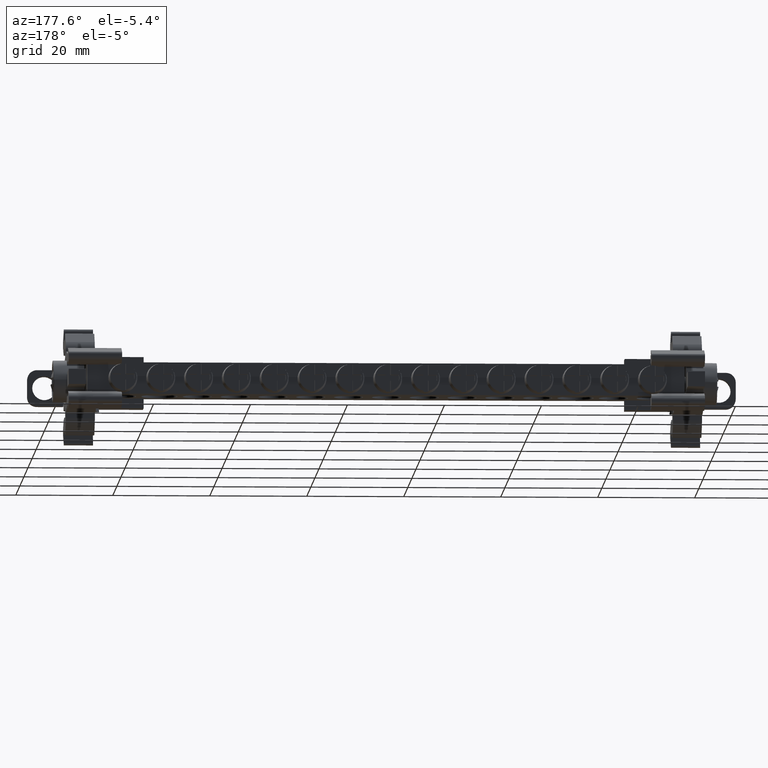
[diagram: clean part render]
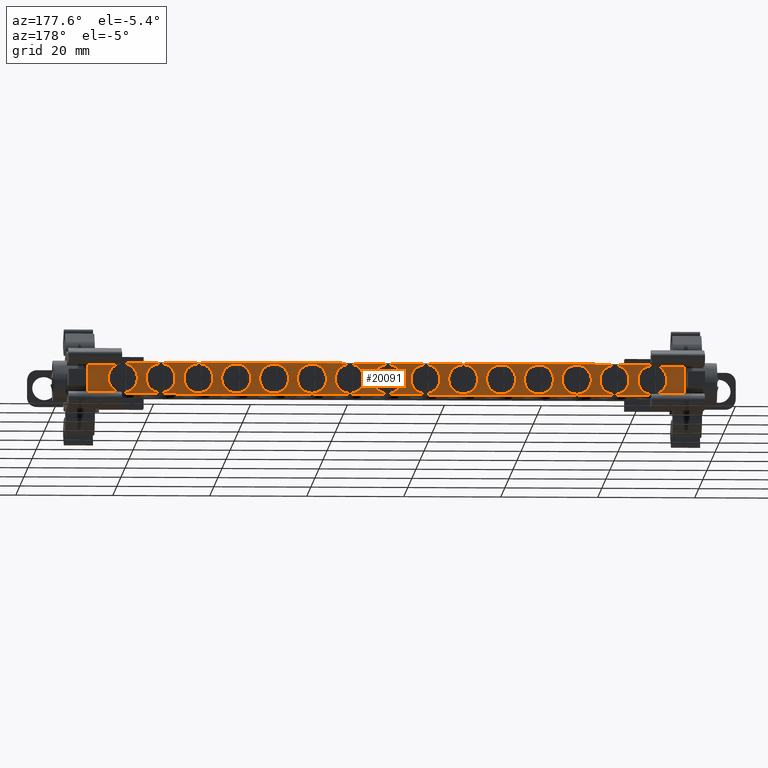
[diagram: same view with one face highlighted and labeled with its STEP entity id]
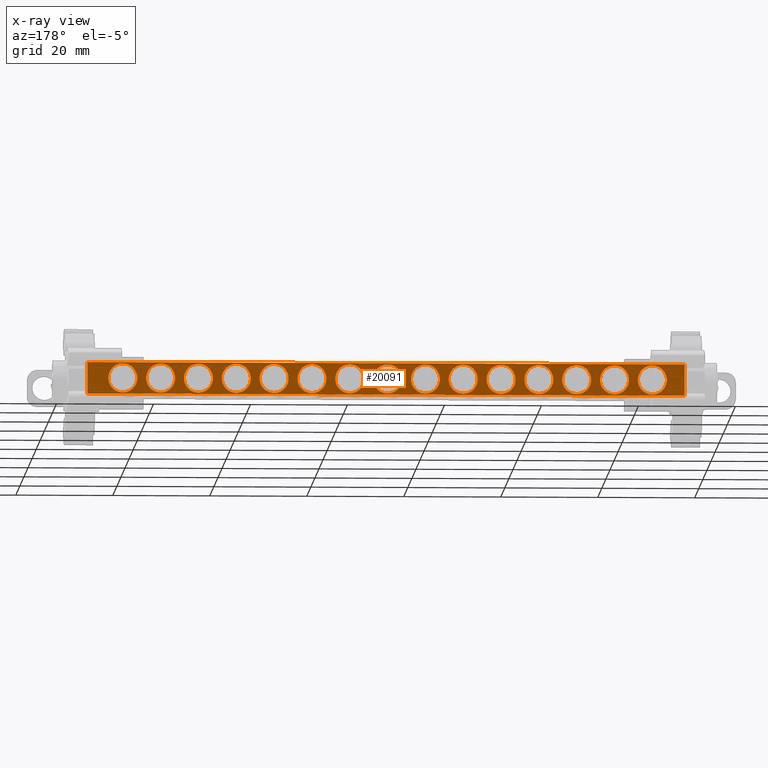
[diagram: x-ray of the same camera — body ghosted, the highlighted face saturated]
A machine part, auxiliary view. The second image highlights one B-rep face of the part: STEP entity #20091.
The next image is the same camera in x-ray: the body ghosted, the highlighted face saturated — about 0% of this face is hidden behind the body in this view.
In plain terms, the highlighted planar face has unit normal (0, -1, 0).
Its self-contained STEP definition (entity closure, byte-faithful):
#532 = CARTESIAN_POINT ( 'NONE',  ( -84.40539649368646700, -33.46391012922822500, 96.00723811290720300 ) ) ;
#534 = DIRECTION ( 'NONE',  ( -0.0000000000000000000, 1.000000000000000000, -0.0000000000000000000 ) ) ;
#535 = DIRECTION ( 'NONE',  ( 0.0000000000000000000, 0.0000000000000000000, -1.000000000000000000 ) ) ;
#547 = DIRECTION ( 'NONE',  ( 0.0000000000000000000, 0.0000000000000000000, -1.000000000000000000 ) ) ;
#551 = CARTESIAN_POINT ( 'NONE',  ( -139.0053964936864200, -33.46391012922822500, 96.00723811290720300 ) ) ;
#560 = DIRECTION ( 'NONE',  ( -0.0000000000000000000, 1.000000000000000000, -0.0000000000000000000 ) ) ;
#572 = DIRECTION ( 'NONE',  ( 0.0000000000000000000, 0.0000000000000000000, -1.000000000000000000 ) ) ;
#575 = CARTESIAN_POINT ( 'NONE',  ( -37.60539649368644200, -33.46391012922822500, 96.00723811290720300 ) ) ;
#592 = DIRECTION ( 'NONE',  ( -0.0000000000000000000, 1.000000000000000000, -0.0000000000000000000 ) ) ;
#620 = CARTESIAN_POINT ( 'NONE',  ( -68.80539649368644500, -33.46391012922822500, 96.00723811290720300 ) ) ;
#640 = DIRECTION ( 'NONE',  ( -0.0000000000000000000, 1.000000000000000000, -0.0000000000000000000 ) ) ;
#642 = DIRECTION ( 'NONE',  ( 0.0000000000000000000, 0.0000000000000000000, -1.000000000000000000 ) ) ;
#649 = DIRECTION ( 'NONE',  ( 0.0000000000000000000, 0.0000000000000000000, -1.000000000000000000 ) ) ;
#655 = CARTESIAN_POINT ( 'NONE',  ( -100.0053964936864500, -33.46391012922822500, 96.00723811290720300 ) ) ;
#660 = CARTESIAN_POINT ( 'NONE',  ( -146.8053964936864300, -33.46391012922822500, 96.00723811290720300 ) ) ;
#676 = DIRECTION ( 'NONE',  ( -0.0000000000000000000, 1.000000000000000000, -0.0000000000000000000 ) ) ;
#688 = DIRECTION ( 'NONE',  ( -0.0000000000000000000, 1.000000000000000000, -0.0000000000000000000 ) ) ;
#693 = CARTESIAN_POINT ( 'NONE',  ( -92.20539649368645000, -33.46391012922822500, 96.00723811290720300 ) ) ;
#697 = DIRECTION ( 'NONE',  ( -0.0000000000000000000, 1.000000000000000000, -0.0000000000000000000 ) ) ;
#706 = DIRECTION ( 'NONE',  ( 0.0000000000000000000, 0.0000000000000000000, -1.000000000000000000 ) ) ;
#710 = DIRECTION ( 'NONE',  ( 0.0000000000000000000, 0.0000000000000000000, -1.000000000000000000 ) ) ;
#732 = AXIS2_PLACEMENT_3D ( 'NONE', #13365, #13352, #13359 ) ;
#739 = CIRCLE ( 'NONE', #750, 3.000085598029278400 ) ;
#750 = AXIS2_PLACEMENT_3D ( 'NONE', #13312, #13311, #13334 ) ;
#760 = CIRCLE ( 'NONE', #732, 3.000085598029278400 ) ;
#884 = AXIS2_PLACEMENT_3D ( 'NONE', #10742, #10758, #10753 ) ;
#901 = CIRCLE ( 'NONE', #884, 3.000085598029278400 ) ;
#918 = CIRCLE ( 'NONE', #943, 3.000085598029278400 ) ;
#922 = AXIS2_PLACEMENT_3D ( 'NONE', #10775, #10770, #10771 ) ;
#934 = CIRCLE ( 'NONE', #922, 3.000085598029278400 ) ;
#943 = AXIS2_PLACEMENT_3D ( 'NONE', #10804, #10814, #10807 ) ;
#1995 = DIRECTION ( 'NONE',  ( -0.0000000000000000000, 1.000000000000000000, -0.0000000000000000000 ) ) ;
#2080 = DIRECTION ( 'NONE',  ( 0.0000000000000000000, 0.0000000000000000000, -1.000000000000000000 ) ) ;
#2747 = DIRECTION ( 'NONE',  ( -0.0000000000000000000, 1.000000000000000000, -0.0000000000000000000 ) ) ;
#2757 = DIRECTION ( 'NONE',  ( 0.0000000000000000000, 0.0000000000000000000, -1.000000000000000000 ) ) ;
#2769 = CARTESIAN_POINT ( 'NONE',  ( -139.0053964936864200, -33.46391012922822500, 96.00723811290720300 ) ) ;
#2918 = CARTESIAN_POINT ( 'NONE',  ( -131.2053964936864400, -33.46391012922822500, 96.00723811290720300 ) ) ;
#3064 = CARTESIAN_POINT ( 'NONE',  ( -61.00539649368644000, -33.46391012922822500, 96.00723811290720300 ) ) ;
#3083 = CARTESIAN_POINT ( 'NONE',  ( -123.4053964936864500, -33.46391012922822500, 96.00723811290720300 ) ) ;
#3087 = DIRECTION ( 'NONE',  ( 0.0000000000000000000, 0.0000000000000000000, -1.000000000000000000 ) ) ;
#3088 = DIRECTION ( 'NONE',  ( -0.0000000000000000000, 1.000000000000000000, -0.0000000000000000000 ) ) ;
#3089 = DIRECTION ( 'NONE',  ( 0.0000000000000000000, 0.0000000000000000000, -1.000000000000000000 ) ) ;
#3090 = DIRECTION ( 'NONE',  ( -0.0000000000000000000, 1.000000000000000000, -0.0000000000000000000 ) ) ;
#3102 = DIRECTION ( 'NONE',  ( 1.000000000000000000, 0.0000000000000000000, 0.0000000000000000000 ) ) ;
#3111 = CARTESIAN_POINT ( 'NONE',  ( -131.2053964936864400, -33.46391012922822500, 96.00723811290720300 ) ) ;
#3115 = DIRECTION ( 'NONE',  ( 0.0000000000000000000, 0.0000000000000000000, -1.000000000000000000 ) ) ;
#3118 = CARTESIAN_POINT ( 'NONE',  ( -90.70539649368640800, -33.46391012921964900, 99.25723811290720300 ) ) ;
#3122 = CARTESIAN_POINT ( 'NONE',  ( -76.60539649368644200, -33.46391012922822500, 96.00723811290720300 ) ) ;
#3124 = DIRECTION ( 'NONE',  ( -0.0000000000000000000, 1.000000000000000000, -0.0000000000000000000 ) ) ;
#3131 = CARTESIAN_POINT ( 'NONE',  ( -90.70539649368640800, -33.46391012921964900, 92.75723811290720300 ) ) ;
#3132 = DIRECTION ( 'NONE',  ( 1.000000000000000000, -0.0000000000000000000, 0.0000000000000000000 ) ) ;
#3136 = LINE ( 'NONE', #3118, #25153 ) ;
#3138 = DIRECTION ( 'NONE',  ( 0.0000000000000000000, 0.0000000000000000000, -1.000000000000000000 ) ) ;
#3143 = LINE ( 'NONE', #3131, #25157 ) ;
#3145 = DIRECTION ( 'NONE',  ( -0.0000000000000000000, 1.000000000000000000, -0.0000000000000000000 ) ) ;
#3151 = CARTESIAN_POINT ( 'NONE',  ( -30.30539649368639800, -33.46391012921964900, 99.25723811290720300 ) ) ;
#3174 = LINE ( 'NONE', #3151, #25149 ) ;
#3182 = DIRECTION ( 'NONE',  ( -0.0000000000000000000, -0.0000000000000000000, -1.000000000000000000 ) ) ;
#3194 = DIRECTION ( 'NONE',  ( -0.0000000000000000000, 1.000000000000000000, -0.0000000000000000000 ) ) ;
#3196 = CARTESIAN_POINT ( 'NONE',  ( -107.8053964936864400, -33.46391012922822500, 96.00723811290720300 ) ) ;
#3201 = DIRECTION ( 'NONE',  ( 0.0000000000000000000, 0.0000000000000000000, -1.000000000000000000 ) ) ;
#3203 = DIRECTION ( 'NONE',  ( -0.0000000000000000000, 1.000000000000000000, -0.0000000000000000000 ) ) ;
#3205 = CARTESIAN_POINT ( 'NONE',  ( -45.40539649368644600, -33.46391012922822500, 96.00723811290720300 ) ) ;
#3212 = LINE ( 'NONE', #3259, #25222 ) ;
#3239 = DIRECTION ( 'NONE',  ( 0.0000000000000000000, 0.0000000000000000000, -1.000000000000000000 ) ) ;
#3259 = CARTESIAN_POINT ( 'NONE',  ( -153.4553964936864100, -33.46391012921964900, 99.25723811290720300 ) ) ;
#3261 = DIRECTION ( 'NONE',  ( -0.0000000000000000000, 1.000000000000000000, -0.0000000000000000000 ) ) ;
#3272 = DIRECTION ( 'NONE',  ( 0.0000000000000000000, 0.0000000000000000000, -1.000000000000000000 ) ) ;
#3274 = DIRECTION ( 'NONE',  ( -0.0000000000000000000, 1.000000000000000000, -0.0000000000000000000 ) ) ;
#3279 = DIRECTION ( 'NONE',  ( 0.0000000000000000000, 0.0000000000000000000, -1.000000000000000000 ) ) ;
#3298 = CARTESIAN_POINT ( 'NONE',  ( -53.20539649368644300, -33.46391012922822500, 96.00723811290720300 ) ) ;
#3303 = CARTESIAN_POINT ( 'NONE',  ( -115.6053964936864600, -33.46391012922822500, 96.00723811290720300 ) ) ;
#3304 = DIRECTION ( 'NONE',  ( 0.0000000000000000000, -0.0000000000000000000, -1.000000000000000000 ) ) ;
#5764 = CARTESIAN_POINT ( 'NONE',  ( -123.4053964936864500, -33.46391012922822500, 96.00723811290720300 ) ) ;
#5765 = DIRECTION ( 'NONE',  ( -0.0000000000000000000, 1.000000000000000000, -0.0000000000000000000 ) ) ;
#5766 = DIRECTION ( 'NONE',  ( 0.0000000000000000000, 0.0000000000000000000, -1.000000000000000000 ) ) ;
#5804 = DIRECTION ( 'NONE',  ( 0.0000000000000000000, 0.0000000000000000000, -1.000000000000000000 ) ) ;
#5827 = DIRECTION ( 'NONE',  ( -0.0000000000000000000, 1.000000000000000000, -0.0000000000000000000 ) ) ;
#5831 = CARTESIAN_POINT ( 'NONE',  ( -146.8053964936864300, -33.46391012922822500, 96.00723811290720300 ) ) ;
#5847 = DIRECTION ( 'NONE',  ( 0.0000000000000000000, 0.0000000000000000000, -1.000000000000000000 ) ) ;
#5851 = DIRECTION ( 'NONE',  ( -0.0000000000000000000, 1.000000000000000000, -0.0000000000000000000 ) ) ;
#5864 = CARTESIAN_POINT ( 'NONE',  ( -68.80539649368644500, -33.46391012922822500, 96.00723811290720300 ) ) ;
#5867 = CARTESIAN_POINT ( 'NONE',  ( -84.40539649368646700, -33.46391012922822500, 96.00723811290720300 ) ) ;
#5868 = DIRECTION ( 'NONE',  ( -0.0000000000000000000, 1.000000000000000000, -0.0000000000000000000 ) ) ;
#5869 = DIRECTION ( 'NONE',  ( 0.0000000000000000000, 0.0000000000000000000, -1.000000000000000000 ) ) ;
#5873 = CARTESIAN_POINT ( 'NONE',  ( -115.6053964936864600, -33.46391012922822500, 96.00723811290720300 ) ) ;
#5875 = DIRECTION ( 'NONE',  ( 0.0000000000000000000, 0.0000000000000000000, -1.000000000000000000 ) ) ;
#5880 = DIRECTION ( 'NONE',  ( -0.0000000000000000000, 1.000000000000000000, -0.0000000000000000000 ) ) ;
#5883 = CARTESIAN_POINT ( 'NONE',  ( -92.20539649368645000, -33.46391012922822500, 96.00723811290720300 ) ) ;
#5884 = DIRECTION ( 'NONE',  ( -0.0000000000000000000, 1.000000000000000000, -0.0000000000000000000 ) ) ;
#5901 = DIRECTION ( 'NONE',  ( 0.0000000000000000000, 0.0000000000000000000, -1.000000000000000000 ) ) ;
#5985 = DIRECTION ( 'NONE',  ( 0.0000000000000000000, 0.0000000000000000000, -1.000000000000000000 ) ) ;
#5986 = CARTESIAN_POINT ( 'NONE',  ( -107.8053964936864400, -33.46391012922822500, 96.00723811290720300 ) ) ;
#5995 = DIRECTION ( 'NONE',  ( -0.0000000000000000000, 1.000000000000000000, -0.0000000000000000000 ) ) ;
#5996 = DIRECTION ( 'NONE',  ( -0.0000000000000000000, 1.000000000000000000, -0.0000000000000000000 ) ) ;
#5998 = DIRECTION ( 'NONE',  ( 0.0000000000000000000, 0.0000000000000000000, -1.000000000000000000 ) ) ;
#6012 = CARTESIAN_POINT ( 'NONE',  ( -100.0053964936864500, -33.46391012922822500, 96.00723811290720300 ) ) ;
#8271 = CARTESIAN_POINT ( 'NONE',  ( -153.4553964936864100, -33.46391012921964900, 99.25723811290720300 ) ) ;
#8274 = CARTESIAN_POINT ( 'NONE',  ( -153.4553964936864100, -33.46391012921964900, 92.75723811290720300 ) ) ;
#8291 = CARTESIAN_POINT ( 'NONE',  ( -30.30539649368639500, -33.46391012921964900, 99.25723811290720300 ) ) ;
#8302 = CARTESIAN_POINT ( 'NONE',  ( -30.30539649368639500, -33.46391012921964900, 92.75723811290720300 ) ) ;
#9982 = EDGE_CURVE ( 'NONE', #21461, #21439, #739, .T. ) ;
#9987 = EDGE_CURVE ( 'NONE', #21502, #21473, #760, .T. ) ;
#10117 = EDGE_CURVE ( 'NONE', #21417, #21435, #901, .T. ) ;
#10126 = EDGE_CURVE ( 'NONE', #21381, #21466, #934, .T. ) ;
#10137 = EDGE_CURVE ( 'NONE', #21471, #21452, #918, .T. ) ;
#10742 = CARTESIAN_POINT ( 'NONE',  ( -53.20539649368644300, -33.46391012922822500, 96.00723811290720300 ) ) ;
#10753 = DIRECTION ( 'NONE',  ( 0.0000000000000000000, 0.0000000000000000000, -1.000000000000000000 ) ) ;
#10758 = DIRECTION ( 'NONE',  ( -0.0000000000000000000, 1.000000000000000000, -0.0000000000000000000 ) ) ;
#10770 = DIRECTION ( 'NONE',  ( -0.0000000000000000000, 1.000000000000000000, -0.0000000000000000000 ) ) ;
#10771 = DIRECTION ( 'NONE',  ( 0.0000000000000000000, 0.0000000000000000000, -1.000000000000000000 ) ) ;
#10775 = CARTESIAN_POINT ( 'NONE',  ( -76.60539649368644200, -33.46391012922822500, 96.00723811290720300 ) ) ;
#10804 = CARTESIAN_POINT ( 'NONE',  ( -61.00539649368644000, -33.46391012922822500, 96.00723811290720300 ) ) ;
#10807 = DIRECTION ( 'NONE',  ( 0.0000000000000000000, 0.0000000000000000000, -1.000000000000000000 ) ) ;
#10814 = DIRECTION ( 'NONE',  ( -0.0000000000000000000, 1.000000000000000000, -0.0000000000000000000 ) ) ;
#12166 = VERTEX_POINT ( 'NONE', #8271 ) ;
#12173 = VERTEX_POINT ( 'NONE', #8302 ) ;
#12204 = VERTEX_POINT ( 'NONE', #8274 ) ;
#12213 = VERTEX_POINT ( 'NONE', #8291 ) ;
#12689 = EDGE_CURVE ( 'NONE', #21452, #21471, #25658, .T. ) ;
#12691 = EDGE_CURVE ( 'NONE', #21410, #21394, #25671, .T. ) ;
#12696 = EDGE_CURVE ( 'NONE', #21466, #21381, #25162, .T. ) ;
#12699 = EDGE_CURVE ( 'NONE', #21407, #21386, #25107, .T. ) ;
#12703 = EDGE_CURVE ( 'NONE', #12204, #12173, #3143, .T. ) ;
#12705 = EDGE_CURVE ( 'NONE', #12166, #12213, #3136, .T. ) ;
#12713 = EDGE_CURVE ( 'NONE', #12213, #12173, #3174, .T. ) ;
#12727 = EDGE_CURVE ( 'NONE', #21439, #21461, #25133, .T. ) ;
#12731 = EDGE_CURVE ( 'NONE', #21364, #21366, #25140, .T. ) ;
#12736 = EDGE_CURVE ( 'NONE', #21404, #21405, #25168, .T. ) ;
#12738 = EDGE_CURVE ( 'NONE', #21435, #21417, #25185, .T. ) ;
#12739 = EDGE_CURVE ( 'NONE', #12166, #12204, #3212, .T. ) ;
#13139 = EDGE_CURVE ( 'NONE', #21401, #21350, #17418, .T. ) ;
#13143 = EDGE_CURVE ( 'NONE', #21395, #21397, #17462, .T. ) ;
#13144 = EDGE_CURVE ( 'NONE', #21473, #21502, #17431, .T. ) ;
#13166 = EDGE_CURVE ( 'NONE', #21469, #21465, #17434, .T. ) ;
#13172 = EDGE_CURVE ( 'NONE', #21312, #21327, #17458, .T. ) ;
#13185 = EDGE_CURVE ( 'NONE', #21378, #21411, #16476, .T. ) ;
#13189 = EDGE_CURVE ( 'NONE', #21409, #21380, #16452, .T. ) ;
#13311 = DIRECTION ( 'NONE',  ( -0.0000000000000000000, 1.000000000000000000, -0.0000000000000000000 ) ) ;
#13312 = CARTESIAN_POINT ( 'NONE',  ( -45.40539649368644600, -33.46391012922822500, 96.00723811290720300 ) ) ;
#13334 = DIRECTION ( 'NONE',  ( 0.0000000000000000000, 0.0000000000000000000, -1.000000000000000000 ) ) ;
#13352 = DIRECTION ( 'NONE',  ( -0.0000000000000000000, 1.000000000000000000, -0.0000000000000000000 ) ) ;
#13359 = DIRECTION ( 'NONE',  ( 0.0000000000000000000, 0.0000000000000000000, -1.000000000000000000 ) ) ;
#13365 = CARTESIAN_POINT ( 'NONE',  ( -37.60539649368644200, -33.46391012922822500, 96.00723811290720300 ) ) ;
#14291 = CARTESIAN_POINT ( 'NONE',  ( -146.8053964936864300, -33.46391012922822500, 93.00715251487793000 ) ) ;
#14305 = CARTESIAN_POINT ( 'NONE',  ( -146.8053964936864300, -33.46391012922822500, 99.00732371093649000 ) ) ;
#14306 = CARTESIAN_POINT ( 'NONE',  ( -139.0053964936864200, -33.46391012922822500, 99.00732371093649000 ) ) ;
#14347 = CARTESIAN_POINT ( 'NONE',  ( -53.20539649368644300, -33.46391012922822500, 99.00732371093649000 ) ) ;
#14350 = CARTESIAN_POINT ( 'NONE',  ( -92.20539649368645000, -33.46391012922822500, 99.00732371093649000 ) ) ;
#14355 = CARTESIAN_POINT ( 'NONE',  ( -139.0053964936864200, -33.46391012922822500, 93.00715251487793000 ) ) ;
#14368 = CARTESIAN_POINT ( 'NONE',  ( -84.40539649368646700, -33.46391012922822500, 93.00715251487793000 ) ) ;
#14374 = CARTESIAN_POINT ( 'NONE',  ( -76.60539649368644200, -33.46391012922822500, 99.00732371093649000 ) ) ;
#14379 = CARTESIAN_POINT ( 'NONE',  ( -100.0053964936864500, -33.46391012922822500, 93.00715251487793000 ) ) ;
#14383 = CARTESIAN_POINT ( 'NONE',  ( -131.2053964936864400, -33.46391012922822500, 99.00732371093649000 ) ) ;
#14386 = CARTESIAN_POINT ( 'NONE',  ( -84.40539649368646700, -33.46391012922822500, 99.00732371093649000 ) ) ;
#14389 = CARTESIAN_POINT ( 'NONE',  ( -115.6053964936864600, -33.46391012922822500, 93.00715251487793000 ) ) ;
#14390 = CARTESIAN_POINT ( 'NONE',  ( -115.6053964936864600, -33.46391012922822500, 99.00732371093649000 ) ) ;
#14392 = CARTESIAN_POINT ( 'NONE',  ( -131.2053964936864400, -33.46391012922822500, 93.00715251487793000 ) ) ;
#14395 = CARTESIAN_POINT ( 'NONE',  ( -107.8053964936864400, -33.46391012922822500, 99.00732371093649000 ) ) ;
#14396 = CARTESIAN_POINT ( 'NONE',  ( -107.8053964936864400, -33.46391012922822500, 93.00715251487793000 ) ) ;
#14400 = CARTESIAN_POINT ( 'NONE',  ( -123.4053964936864500, -33.46391012922822500, 99.00732371093649000 ) ) ;
#14401 = CARTESIAN_POINT ( 'NONE',  ( -92.20539649368645000, -33.46391012922822500, 93.00715251487793000 ) ) ;
#14402 = CARTESIAN_POINT ( 'NONE',  ( -123.4053964936864500, -33.46391012922822500, 93.00715251487793000 ) ) ;
#14403 = CARTESIAN_POINT ( 'NONE',  ( -100.0053964936864500, -33.46391012922822500, 99.00732371093649000 ) ) ;
#14409 = CARTESIAN_POINT ( 'NONE',  ( -61.00539649368644000, -33.46391012922822500, 99.00732371093649000 ) ) ;
#14431 = CARTESIAN_POINT ( 'NONE',  ( -53.20539649368644300, -33.46391012922822500, 93.00715251487793000 ) ) ;
#14433 = CARTESIAN_POINT ( 'NONE',  ( -37.60539649368644200, -33.46391012922822500, 93.00715251487793000 ) ) ;
#14438 = CARTESIAN_POINT ( 'NONE',  ( -61.00539649368644000, -33.46391012922822500, 93.00715251487793000 ) ) ;
#14439 = CARTESIAN_POINT ( 'NONE',  ( -45.40539649368644600, -33.46391012922822500, 99.00732371093649000 ) ) ;
#14442 = CARTESIAN_POINT ( 'NONE',  ( -68.80539649368644500, -33.46391012922822500, 93.00715251487793000 ) ) ;
#14451 = CARTESIAN_POINT ( 'NONE',  ( -45.40539649368644600, -33.46391012922822500, 93.00715251487793000 ) ) ;
#14455 = CARTESIAN_POINT ( 'NONE',  ( -76.60539649368644200, -33.46391012922822500, 93.00715251487793000 ) ) ;
#14464 = CARTESIAN_POINT ( 'NONE',  ( -68.80539649368644500, -33.46391012922822500, 99.00732371093649000 ) ) ;
#14481 = CARTESIAN_POINT ( 'NONE',  ( -37.60539649368644200, -33.46391012922822500, 99.00732371093649000 ) ) ;
#16451 = AXIS2_PLACEMENT_3D ( 'NONE', #693, #697, #710 ) ;
#16452 = CIRCLE ( 'NONE', #16451, 3.000085598029278400 ) ;
#16467 = AXIS2_PLACEMENT_3D ( 'NONE', #655, #688, #706 ) ;
#16476 = CIRCLE ( 'NONE', #16467, 3.000085598029278400 ) ;
#16975 = AXIS2_PLACEMENT_3D ( 'NONE', #2769, #2747, #2757 ) ;
#16984 = CIRCLE ( 'NONE', #16975, 3.000085598029278400 ) ;
#17015 = CIRCLE ( 'NONE', #17044, 3.000085598029278400 ) ;
#17020 = AXIS2_PLACEMENT_3D ( 'NONE', #5873, #5851, #5875 ) ;
#17026 = CIRCLE ( 'NONE', #17031, 3.000085598029278400 ) ;
#17031 = AXIS2_PLACEMENT_3D ( 'NONE', #5867, #5868, #5869 ) ;
#17035 = CIRCLE ( 'NONE', #17061, 3.000085598029278400 ) ;
#17043 = CIRCLE ( 'NONE', #17050, 3.000085598029278400 ) ;
#17044 = AXIS2_PLACEMENT_3D ( 'NONE', #5764, #5765, #5766 ) ;
#17050 = AXIS2_PLACEMENT_3D ( 'NONE', #2918, #1995, #2080 ) ;
#17061 = AXIS2_PLACEMENT_3D ( 'NONE', #5831, #5827, #5804 ) ;
#17063 = AXIS2_PLACEMENT_3D ( 'NONE', #5864, #5880, #5847 ) ;
#17064 = CIRCLE ( 'NONE', #17020, 3.000085598029278400 ) ;
#17074 = CIRCLE ( 'NONE', #17063, 3.000085598029278400 ) ;
#17076 = CIRCLE ( 'NONE', #17104, 3.000085598029278400 ) ;
#17098 = AXIS2_PLACEMENT_3D ( 'NONE', #5986, #5996, #5998 ) ;
#17104 = AXIS2_PLACEMENT_3D ( 'NONE', #5883, #5884, #5901 ) ;
#17106 = CIRCLE ( 'NONE', #17131, 3.000085598029278400 ) ;
#17122 = CIRCLE ( 'NONE', #17098, 3.000085598029278400 ) ;
#17131 = AXIS2_PLACEMENT_3D ( 'NONE', #6012, #5995, #5985 ) ;
#17390 = AXIS2_PLACEMENT_3D ( 'NONE', #551, #560, #547 ) ;
#17418 = CIRCLE ( 'NONE', #17390, 3.000085598029278400 ) ;
#17423 = AXIS2_PLACEMENT_3D ( 'NONE', #620, #640, #642 ) ;
#17431 = CIRCLE ( 'NONE', #17449, 3.000085598029278400 ) ;
#17434 = CIRCLE ( 'NONE', #17423, 3.000085598029278400 ) ;
#17443 = AXIS2_PLACEMENT_3D ( 'NONE', #532, #534, #535 ) ;
#17449 = AXIS2_PLACEMENT_3D ( 'NONE', #575, #592, #572 ) ;
#17458 = CIRCLE ( 'NONE', #17465, 3.000085598029278400 ) ;
#17462 = CIRCLE ( 'NONE', #17443, 3.000085598029278400 ) ;
#17465 = AXIS2_PLACEMENT_3D ( 'NONE', #660, #676, #649 ) ;
#18118 = EDGE_CURVE ( 'NONE', #21350, #21401, #16984, .T. ) ;
#18148 = EDGE_CURVE ( 'NONE', #21386, #21407, #17043, .T. ) ;
#18186 = EDGE_CURVE ( 'NONE', #21394, #21410, #17015, .T. ) ;
#18199 = EDGE_CURVE ( 'NONE', #21327, #21312, #17035, .T. ) ;
#18231 = EDGE_CURVE ( 'NONE', #21465, #21469, #17074, .T. ) ;
#18233 = EDGE_CURVE ( 'NONE', #21405, #21404, #17064, .T. ) ;
#18256 = EDGE_CURVE ( 'NONE', #21397, #21395, #17026, .T. ) ;
#18274 = EDGE_CURVE ( 'NONE', #21380, #21409, #17076, .T. ) ;
#18335 = EDGE_CURVE ( 'NONE', #21411, #21378, #17106, .T. ) ;
#18338 = EDGE_CURVE ( 'NONE', #21366, #21364, #17122, .T. ) ;
#18612 = ORIENTED_EDGE ( 'NONE', *, *, #12739, .F. ) ;
#18627 = ORIENTED_EDGE ( 'NONE', *, *, #12689, .F. ) ;
#18630 = ORIENTED_EDGE ( 'NONE', *, *, #18338, .F. ) ;
#18631 = ORIENTED_EDGE ( 'NONE', *, *, #12703, .F. ) ;
#18632 = ORIENTED_EDGE ( 'NONE', *, *, #18118, .F. ) ;
#18633 = ORIENTED_EDGE ( 'NONE', *, *, #18233, .F. ) ;
#18634 = ORIENTED_EDGE ( 'NONE', *, *, #9982, .F. ) ;
#18635 = ORIENTED_EDGE ( 'NONE', *, *, #13144, .F. ) ;
#18637 = ORIENTED_EDGE ( 'NONE', *, *, #10117, .F. ) ;
#18638 = ORIENTED_EDGE ( 'NONE', *, *, #13143, .F. ) ;
#18641 = ORIENTED_EDGE ( 'NONE', *, *, #13166, .F. ) ;
#18644 = ORIENTED_EDGE ( 'NONE', *, *, #18274, .F. ) ;
#18645 = ORIENTED_EDGE ( 'NONE', *, *, #12713, .T. ) ;
#18663 = ORIENTED_EDGE ( 'NONE', *, *, #18335, .F. ) ;
#18670 = ORIENTED_EDGE ( 'NONE', *, *, #18186, .F. ) ;
#18684 = ORIENTED_EDGE ( 'NONE', *, *, #9987, .F. ) ;
#18685 = ORIENTED_EDGE ( 'NONE', *, *, #12736, .F. ) ;
#18688 = ORIENTED_EDGE ( 'NONE', *, *, #18148, .F. ) ;
#18689 = ORIENTED_EDGE ( 'NONE', *, *, #12727, .F. ) ;
#18691 = ORIENTED_EDGE ( 'NONE', *, *, #13172, .F. ) ;
#18697 = ORIENTED_EDGE ( 'NONE', *, *, #18256, .F. ) ;
#18701 = ORIENTED_EDGE ( 'NONE', *, *, #18199, .F. ) ;
#18702 = ORIENTED_EDGE ( 'NONE', *, *, #18231, .F. ) ;
#18705 = ORIENTED_EDGE ( 'NONE', *, *, #12696, .F. ) ;
#18707 = ORIENTED_EDGE ( 'NONE', *, *, #13189, .F. ) ;
#18712 = ORIENTED_EDGE ( 'NONE', *, *, #12705, .T. ) ;
#18713 = ORIENTED_EDGE ( 'NONE', *, *, #12738, .F. ) ;
#18715 = ORIENTED_EDGE ( 'NONE', *, *, #13139, .F. ) ;
#18716 = ORIENTED_EDGE ( 'NONE', *, *, #13185, .F. ) ;
#18718 = ORIENTED_EDGE ( 'NONE', *, *, #12731, .F. ) ;
#18720 = ORIENTED_EDGE ( 'NONE', *, *, #10126, .F. ) ;
#18727 = ORIENTED_EDGE ( 'NONE', *, *, #10137, .F. ) ;
#18729 = ORIENTED_EDGE ( 'NONE', *, *, #12691, .F. ) ;
#18733 = ORIENTED_EDGE ( 'NONE', *, *, #12699, .F. ) ;
#20091 = ADVANCED_FACE ( 'NONE', ( #23770, #23771, #23778, #23744, #23758, #23780, #23735, #23775, #23754, #23741, #23759, #23749, #23781, #23766, #23742, #23747 ), #23785, .F. ) ;
#20355 = EDGE_LOOP ( 'NONE', ( #18715, #18632 ) ) ;
#20376 = EDGE_LOOP ( 'NONE', ( #18733, #18688 ) ) ;
#20391 = EDGE_LOOP ( 'NONE', ( #18689, #18634 ) ) ;
#20400 = EDGE_LOOP ( 'NONE', ( #18707, #18644 ) ) ;
#20425 = EDGE_LOOP ( 'NONE', ( #18635, #18684 ) ) ;
#20426 = EDGE_LOOP ( 'NONE', ( #18716, #18663 ) ) ;
#20432 = EDGE_LOOP ( 'NONE', ( #18691, #18701 ) ) ;
#20436 = EDGE_LOOP ( 'NONE', ( #18713, #18637 ) ) ;
#20439 = EDGE_LOOP ( 'NONE', ( #18685, #18633 ) ) ;
#20447 = EDGE_LOOP ( 'NONE', ( #18638, #18697 ) ) ;
#20450 = EDGE_LOOP ( 'NONE', ( #18718, #18630 ) ) ;
#20454 = EDGE_LOOP ( 'NONE', ( #18627, #18727 ) ) ;
#20461 = EDGE_LOOP ( 'NONE', ( #18641, #18702 ) ) ;
#20462 = EDGE_LOOP ( 'NONE', ( #18705, #18720 ) ) ;
#20471 = EDGE_LOOP ( 'NONE', ( #18729, #18670 ) ) ;
#20473 = EDGE_LOOP ( 'NONE', ( #18612, #18712, #18645, #18631 ) ) ;
#21312 = VERTEX_POINT ( 'NONE', #14291 ) ;
#21327 = VERTEX_POINT ( 'NONE', #14305 ) ;
#21350 = VERTEX_POINT ( 'NONE', #14306 ) ;
#21364 = VERTEX_POINT ( 'NONE', #14396 ) ;
#21366 = VERTEX_POINT ( 'NONE', #14395 ) ;
#21378 = VERTEX_POINT ( 'NONE', #14379 ) ;
#21380 = VERTEX_POINT ( 'NONE', #14350 ) ;
#21381 = VERTEX_POINT ( 'NONE', #14374 ) ;
#21386 = VERTEX_POINT ( 'NONE', #14383 ) ;
#21394 = VERTEX_POINT ( 'NONE', #14400 ) ;
#21395 = VERTEX_POINT ( 'NONE', #14368 ) ;
#21397 = VERTEX_POINT ( 'NONE', #14386 ) ;
#21401 = VERTEX_POINT ( 'NONE', #14355 ) ;
#21404 = VERTEX_POINT ( 'NONE', #14389 ) ;
#21405 = VERTEX_POINT ( 'NONE', #14390 ) ;
#21407 = VERTEX_POINT ( 'NONE', #14392 ) ;
#21409 = VERTEX_POINT ( 'NONE', #14401 ) ;
#21410 = VERTEX_POINT ( 'NONE', #14402 ) ;
#21411 = VERTEX_POINT ( 'NONE', #14403 ) ;
#21417 = VERTEX_POINT ( 'NONE', #14347 ) ;
#21435 = VERTEX_POINT ( 'NONE', #14431 ) ;
#21439 = VERTEX_POINT ( 'NONE', #14451 ) ;
#21452 = VERTEX_POINT ( 'NONE', #14438 ) ;
#21461 = VERTEX_POINT ( 'NONE', #14439 ) ;
#21465 = VERTEX_POINT ( 'NONE', #14464 ) ;
#21466 = VERTEX_POINT ( 'NONE', #14455 ) ;
#21469 = VERTEX_POINT ( 'NONE', #14442 ) ;
#21471 = VERTEX_POINT ( 'NONE', #14409 ) ;
#21473 = VERTEX_POINT ( 'NONE', #14433 ) ;
#21502 = VERTEX_POINT ( 'NONE', #14481 ) ;
#23734 = CARTESIAN_POINT ( 'NONE',  ( -90.70539649368640800, -33.46391012921964900, 99.25723811290720300 ) ) ;
#23735 = FACE_BOUND ( 'NONE', #20450, .T. ) ;
#23741 = FACE_BOUND ( 'NONE', #20447, .T. ) ;
#23742 = FACE_BOUND ( 'NONE', #20391, .T. ) ;
#23744 = FACE_BOUND ( 'NONE', #20376, .T. ) ;
#23747 = FACE_BOUND ( 'NONE', #20425, .T. ) ;
#23749 = FACE_BOUND ( 'NONE', #20461, .T. ) ;
#23754 = FACE_BOUND ( 'NONE', #20400, .T. ) ;
#23758 = FACE_BOUND ( 'NONE', #20471, .T. ) ;
#23759 = FACE_BOUND ( 'NONE', #20462, .T. ) ;
#23762 = DIRECTION ( 'NONE',  ( 0.0000000000000000000, -0.0000000000000000000, -1.000000000000000000 ) ) ;
#23764 = DIRECTION ( 'NONE',  ( 0.0000000000000000000, -1.000000000000000000, 0.0000000000000000000 ) ) ;
#23766 = FACE_BOUND ( 'NONE', #20436, .T. ) ;
#23770 = FACE_OUTER_BOUND ( 'NONE', #20473, .T. ) ;
#23771 = FACE_BOUND ( 'NONE', #20432, .T. ) ;
#23775 = FACE_BOUND ( 'NONE', #20426, .T. ) ;
#23778 = FACE_BOUND ( 'NONE', #20355, .T. ) ;
#23780 = FACE_BOUND ( 'NONE', #20439, .T. ) ;
#23781 = FACE_BOUND ( 'NONE', #20454, .T. ) ;
#23785 = PLANE ( 'NONE',  #26086 ) ;
#25107 = CIRCLE ( 'NONE', #25130, 3.000085598029278400 ) ;
#25116 = AXIS2_PLACEMENT_3D ( 'NONE', #3303, #3274, #3272 ) ;
#25125 = AXIS2_PLACEMENT_3D ( 'NONE', #3122, #3145, #3115 ) ;
#25130 = AXIS2_PLACEMENT_3D ( 'NONE', #3111, #3124, #3138 ) ;
#25133 = CIRCLE ( 'NONE', #25163, 3.000085598029278400 ) ;
#25140 = CIRCLE ( 'NONE', #25142, 3.000085598029278400 ) ;
#25142 = AXIS2_PLACEMENT_3D ( 'NONE', #3196, #3203, #3239 ) ;
#25149 = VECTOR ( 'NONE', #3182, 1000.000000000000000 ) ;
#25153 = VECTOR ( 'NONE', #3132, 1000.000000000000000 ) ;
#25157 = VECTOR ( 'NONE', #3102, 1000.000000000000000 ) ;
#25162 = CIRCLE ( 'NONE', #25125, 3.000085598029278400 ) ;
#25163 = AXIS2_PLACEMENT_3D ( 'NONE', #3205, #3194, #3201 ) ;
#25168 = CIRCLE ( 'NONE', #25116, 3.000085598029278400 ) ;
#25185 = CIRCLE ( 'NONE', #25206, 3.000085598029278400 ) ;
#25206 = AXIS2_PLACEMENT_3D ( 'NONE', #3298, #3261, #3279 ) ;
#25222 = VECTOR ( 'NONE', #3304, 1000.000000000000000 ) ;
#25658 = CIRCLE ( 'NONE', #25661, 3.000085598029278400 ) ;
#25661 = AXIS2_PLACEMENT_3D ( 'NONE', #3064, #3090, #3087 ) ;
#25665 = AXIS2_PLACEMENT_3D ( 'NONE', #3083, #3088, #3089 ) ;
#25671 = CIRCLE ( 'NONE', #25665, 3.000085598029278400 ) ;
#26086 = AXIS2_PLACEMENT_3D ( 'NONE', #23734, #23764, #23762 ) ;